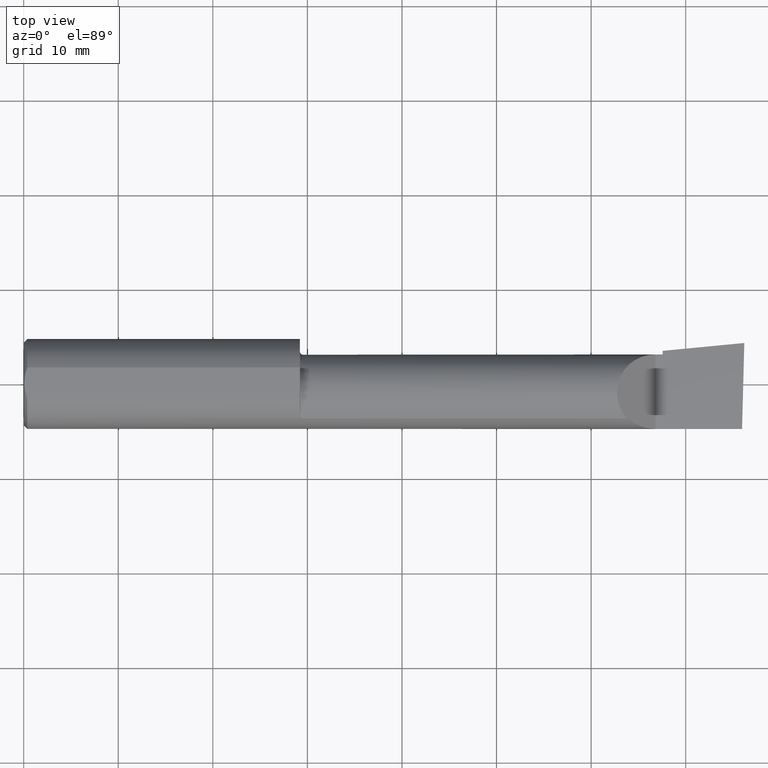
[diagram: clean part render]
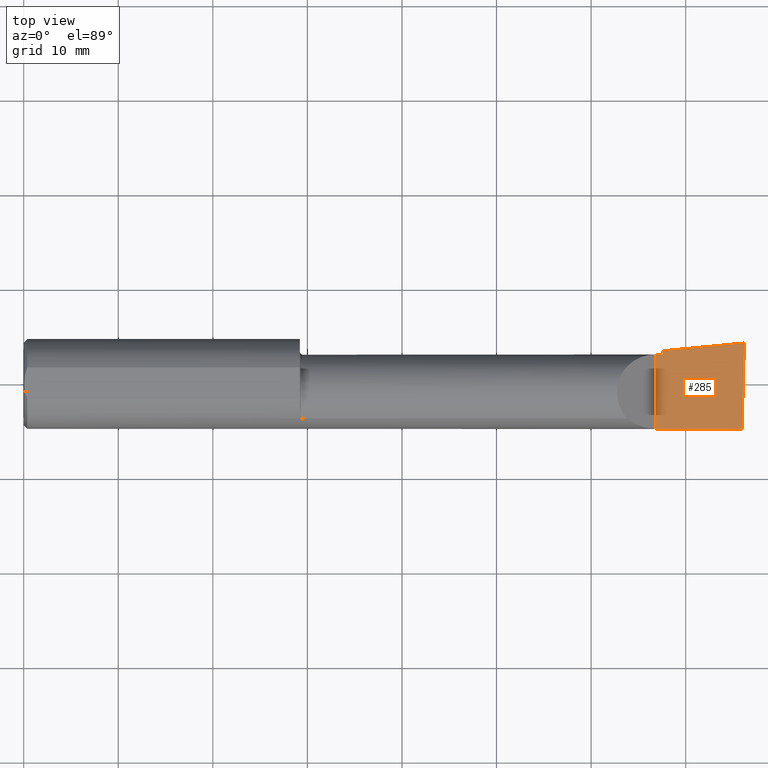
[diagram: same view with one face highlighted and labeled with its STEP entity id]
A machine part, top view. The second image highlights one B-rep face of the part: STEP entity #285.
In plain terms, the highlighted planar face has unit normal (-0, 0, -1).
Its self-contained STEP definition (entity closure, byte-faithful):
#7 = CARTESIAN_POINT ( 'NONE',  ( 9.109005653874777379E-19, 0.1226499999999998841, 3.563723795045361633E-16 ) ) ;
#15 = DIRECTION ( 'NONE',  ( 0.9953961983671787417, 0.09584575252022435599, -1.409044964823803883E-16 ) ) ;
#54 = CARTESIAN_POINT ( 'NONE',  ( 3.000000000000013323, 0.1706500000000293615, 9.155799222047003664E-14 ) ) ;
#55 = AXIS2_PLACEMENT_3D ( 'NONE', #337, #135, #238 ) ;
#56 = FACE_OUTER_BOUND ( 'NONE', #548, .T. ) ;
#78 = LINE ( 'NONE', #395, #242 ) ;
#85 = VERTEX_POINT ( 'NONE', #253 ) ;
#120 = ORIENTED_EDGE ( 'NONE', *, *, #225, .F. ) ;
#129 = VERTEX_POINT ( 'NONE', #454 ) ;
#135 = DIRECTION ( 'NONE',  ( -1.415561931153809475E-16, 0.0000000000000000000, -1.000000000000000000 ) ) ;
#142 = VERTEX_POINT ( 'NONE', #54 ) ;
#148 = ORIENTED_EDGE ( 'NONE', *, *, #249, .F. ) ;
#174 = VECTOR ( 'NONE', #291, 39.37007874015748143 ) ;
#176 = CARTESIAN_POINT ( 'NONE',  ( 2.659999999999999698, -0.2500000000000000555, -2.016709418237695393E-17 ) ) ;
#217 = LINE ( 'NONE', #7, #336 ) ;
#218 = CARTESIAN_POINT ( 'NONE',  ( 2.990625440078233499, -0.1873499999999999888, -6.699231446134777283E-17 ) ) ;
#222 = ORIENTED_EDGE ( 'NONE', *, *, #351, .F. ) ;
#225 = EDGE_CURVE ( 'NONE', #524, #129, #448, .T. ) ;
#226 = PLANE ( 'NONE',  #55 ) ;
#233 = DIRECTION ( 'NONE',  ( -0.0000000000000000000, 1.000000000000000000, -0.0000000000000000000 ) ) ;
#238 = DIRECTION ( 'NONE',  ( -1.000000000000000000, 0.0000000000000000000, 1.415561931153809475E-16 ) ) ;
#242 = VECTOR ( 'NONE', #15, 39.37007874015748143 ) ;
#245 = DIRECTION ( 'NONE',  ( 5.691349986800549142E-18, 1.000000000000000000, -8.056458378187594471E-34 ) ) ;
#249 = EDGE_CURVE ( 'NONE', #445, #524, #562, .T. ) ;
#253 = CARTESIAN_POINT ( 'NONE',  ( 2.659999999999999698, 0.1379117236128415691, 3.606893054134847731E-16 ) ) ;
#276 = VECTOR ( 'NONE', #233, 39.37007874015748143 ) ;
#285 = ADVANCED_FACE ( 'NONE', ( #56 ), #226, .F. ) ;
#291 = DIRECTION ( 'NONE',  ( -1.000000000000000000, -0.0000000000000000000, -0.0000000000000000000 ) ) ;
#293 = CARTESIAN_POINT ( 'NONE',  ( 2.629999999999999893, -0.2500000000000000555, -1.592040838891560883E-17 ) ) ;
#296 = ORIENTED_EDGE ( 'NONE', *, *, #382, .F. ) ;
#299 = EDGE_CURVE ( 'NONE', #492, #85, #355, .T. ) ;
#305 = DIRECTION ( 'NONE',  ( 1.000000000000000000, -5.691349986800549142E-18, 0.0000000000000000000 ) ) ;
#327 = CARTESIAN_POINT ( 'NONE',  ( 2.660000000000000142, 0.1226500000000000368, 3.563723795045366070E-16 ) ) ;
#336 = VECTOR ( 'NONE', #305, 39.37007874015748143 ) ;
#337 = CARTESIAN_POINT ( 'NONE',  ( 3.000000000000000444, -0.2500000000000000555, -6.829619984160658046E-17 ) ) ;
#338 = EDGE_CURVE ( 'NONE', #445, #142, #479, .T. ) ;
#345 = ORIENTED_EDGE ( 'NONE', *, *, #338, .T. ) ;
#351 = EDGE_CURVE ( 'NONE', #129, #492, #217, .T. ) ;
#355 = LINE ( 'NONE', #176, #368 ) ;
#368 = VECTOR ( 'NONE', #245, 39.37007874015748143 ) ;
#382 = EDGE_CURVE ( 'NONE', #85, #142, #78, .T. ) ;
#395 = CARTESIAN_POINT ( 'NONE',  ( 0.8393181374772645809, -0.03739999999999999575, 2.375616991505627107E-16 ) ) ;
#399 = DIRECTION ( 'NONE',  ( 0.02617694830787033883, 0.9996573249755572599, -4.076468941374972475E-18 ) ) ;
#445 = VERTEX_POINT ( 'NONE', #218 ) ;
#448 = LINE ( 'NONE', #293, #276 ) ;
#454 = CARTESIAN_POINT ( 'NONE',  ( 2.629999999999999893, 0.1226499999999998147, -1.592040838891560883E-17 ) ) ;
#479 = LINE ( 'NONE', #480, #495 ) ;
#480 = CARTESIAN_POINT ( 'NONE',  ( 2.988992440003205520, -0.2497117568972558599, -6.673801155297119022E-17 ) ) ;
#492 = VERTEX_POINT ( 'NONE', #327 ) ;
#495 = VECTOR ( 'NONE', #399, 39.37007874015748854 ) ;
#499 = CARTESIAN_POINT ( 'NONE',  ( 2.629999999999999893, -0.1873499999999999888, -1.592040838891560883E-17 ) ) ;
#505 = ORIENTED_EDGE ( 'NONE', *, *, #299, .F. ) ;
#520 = CARTESIAN_POINT ( 'NONE',  ( 5.044671737413194975E-32, -0.1873499999999999610, 3.563723795045361633E-16 ) ) ;
#524 = VERTEX_POINT ( 'NONE', #499 ) ;
#548 = EDGE_LOOP ( 'NONE', ( #148, #345, #296, #505, #222, #120 ) ) ;
#562 = LINE ( 'NONE', #520, #174 ) ;